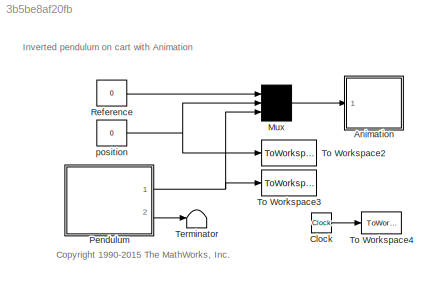
MODEL slx_3b5be8af20fb
KIND model
CONFIG AbsTol = 1e-6
CONFIG EnableMultiTasking = off
CONFIG FixedStep = 0.05
CONFIG MaxStep = 0.02
CONFIG MinStep = auto
CONFIG RelTol = 1e-3
CONFIG SampleTimeConstraint = Unconstrained
CONFIG Solver = FixedStepAuto
CONFIG SolverName = FixedStepAuto
CONFIG StartTime = 0
CONFIG StopTime = 10
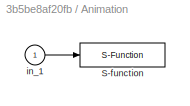
BLOCK [SubSystem] Animation
  Ports = [1]
  RequestExecContextInheritance = off
BLOCK [S-Function] Animation/S-function
  DeleteFcn = pendan([],[],[],'DeleteBlock');
  EnableBusSupport = off
  FunctionName = cartpend_anime
  Parameters = RefBlock
  Ports = [1]
  SFcnIsStateOwnerBlock = off
  SFunctionDeploymentMode = off
BLOCK [Inport] Animation/in_1
BLOCK [Clock] Clock
  Decimation = 1
BLOCK [Mux] Mux
  Inputs = 3
  Ports = [3, 1]
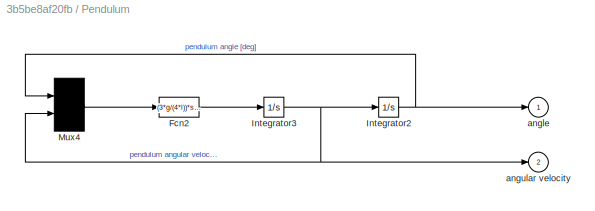
BLOCK [SubSystem] Pendulum
  Ports = [0, 2]
  RequestExecContextInheritance = off
BLOCK [Fcn] Pendulum/Fcn2
  Expr = (3*g/(4*l))*sin(u(1)) - (3*Dt/(4*m*l^2))*u(2)
BLOCK [Integrator] Pendulum/Integrator2
  InitialCondition = theta_init
  Ports = [1, 1]
BLOCK [Integrator] Pendulum/Integrator3
  Ports = [1, 1]
BLOCK [Mux] Pendulum/Mux4
  Inputs = 2
  Ports = [2, 1]
BLOCK [Outport] Pendulum/angle
  InitialOutput = 0
  VectorParamsAs1DForOutWhenUnconnected = off
BLOCK [Outport] Pendulum/angular velocity
  InitialOutput = 0
  Port = 2
  VectorParamsAs1DForOutWhenUnconnected = off
BLOCK [Constant] Reference
  Value = 0
BLOCK [Terminator] Terminator
BLOCK [ToWorkspace] To Workspace2
  FixptAsFi = on
  MaxDataPoints = inf
  Ports = [1]
  SampleTime = -1
  Save2DSignal = 2-D array (concatenate along first dimension)
  VariableName = position
BLOCK [ToWorkspace] To Workspace3
  FixptAsFi = on
  MaxDataPoints = inf
  Ports = [1]
  SampleTime = -1
  Save2DSignal = 2-D array (concatenate along first dimension)
  VariableName = angle
BLOCK [ToWorkspace] To Workspace4
  FixptAsFi = on
  MaxDataPoints = inf
  Ports = [1]
  SampleTime = -1
  Save2DSignal = 2-D array (concatenate along first dimension)
  VariableName = t
BLOCK [Constant] position
  Value = 0
ANNOTATION (root): <copyright redacted>
ANNOTATION (root): Inverted pendulum on cart with Animation
LINE Animation/in_1:1 -> Animation/S-function:1
LINE Clock:1 -> To Workspace4:1
LINE Mux:1 -> Animation:1
LINE Pendulum/Fcn2:1 -> Pendulum/Integrator3:1
NET Pendulum/Integrator2:1 -> Pendulum/Mux4:1, Pendulum/angle:1
NET Pendulum/Integrator3:1 -> Pendulum/Integrator2:1, Pendulum/Mux4:2, Pendulum/angular velocity:1
LINE Pendulum/Mux4:1 -> Pendulum/Fcn2:1
NET Pendulum:1 -> Mux:3, To Workspace3:1
LINE Pendulum:2 -> Terminator:1
LINE Reference:1 -> Mux:1
NET position:1 -> Mux:2, To Workspace2:1
note: NET lines group one-source signal fan-out (src -> all destinations, sorted); 1:1 wires keep LINE
